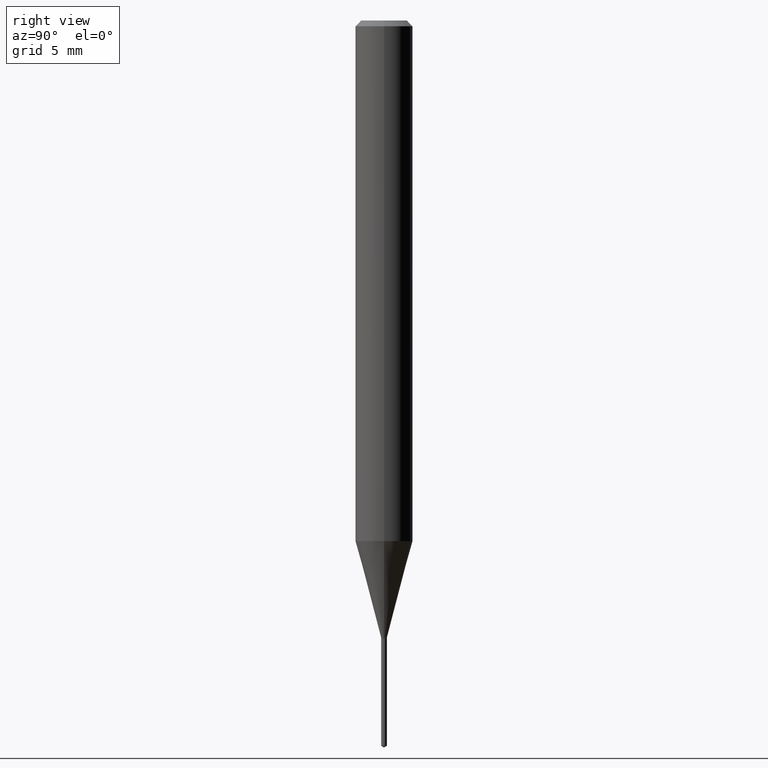
[diagram: clean part render]
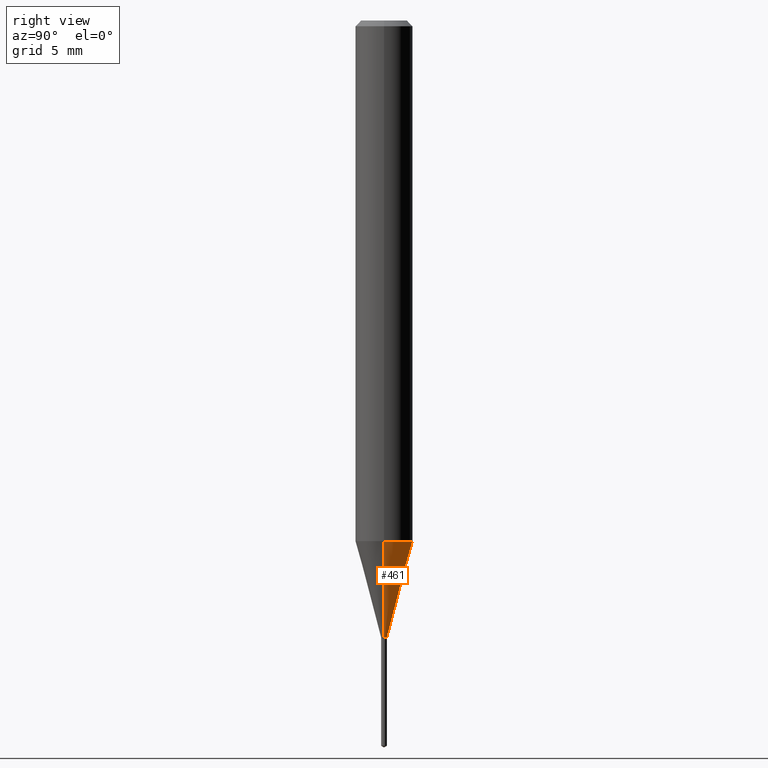
[diagram: same view with one face highlighted and labeled with its STEP entity id]
A machine part, right view. The second image highlights one B-rep face of the part: STEP entity #461.
In plain terms, the highlighted conical surface has half-angle 15 deg.
Its self-contained STEP definition (entity closure, byte-faithful):
#5 = VECTOR ( 'NONE', #327, 39.37007874015748854 ) ;
#13 = VECTOR ( 'NONE', #441, 39.37007874015748854 ) ;
#27 = ORIENTED_EDGE ( 'NONE', *, *, #437, .T. ) ;
#29 = VERTEX_POINT ( 'NONE', #383 ) ;
#31 = CARTESIAN_POINT ( 'NONE',  ( 2.620421311750143284E-29, -3.741267149571589236E-15, -1.071541499577713941 ) ) ;
#33 = ORIENTED_EDGE ( 'NONE', *, *, #77, .T. ) ;
#34 = CARTESIAN_POINT ( 'NONE',  ( -0.005899999999999991189, -4.391910130787065442E-15, -1.269900000000000029 ) ) ;
#67 = CARTESIAN_POINT ( 'NONE',  ( 3.105500836974505052E-29, -4.433832152196910680E-15, -1.269900000000000029 ) ) ;
#73 = DIRECTION ( 'NONE',  ( -2.445468806185136597E-29, 3.491481338843145583E-15, 1.000000000000000000 ) ) ;
#77 = EDGE_CURVE ( 'NONE', #29, #230, #291, .T. ) ;
#120 = ORIENTED_EDGE ( 'NONE', *, *, #388, .F. ) ;
#137 = LINE ( 'NONE', #34, #5 ) ;
#139 = VERTEX_POINT ( 'NONE', #447 ) ;
#142 = DIRECTION ( 'NONE',  ( 1.000000000000000000, -6.982962677686228056E-15, 0.000000000000000000 ) ) ;
#148 = VERTEX_POINT ( 'NONE', #227 ) ;
#176 = ORIENTED_EDGE ( 'NONE', *, *, #454, .F. ) ;
#180 = DIRECTION ( 'NONE',  ( 1.000000000000000000, -6.982962677686265133E-15, 0.000000000000000000 ) ) ;
#181 = DIRECTION ( 'NONE',  ( -2.445468806185136597E-29, 3.491481338843145583E-15, 1.000000000000000000 ) ) ;
#205 = CARTESIAN_POINT ( 'NONE',  ( -0.005899999999999991189, -4.394179593657313002E-15, -1.269900000000000029 ) ) ;
#227 = CARTESIAN_POINT ( 'NONE',  ( -0.05905000000000013710, -3.321691664105248954E-15, -1.071541499577713941 ) ) ;
#230 = VERTEX_POINT ( 'NONE', #205 ) ;
#251 = FACE_OUTER_BOUND ( 'NONE', #252, .T. ) ;
#252 = EDGE_LOOP ( 'NONE', ( #33, #27, #176, #120 ) ) ;
#276 = AXIS2_PLACEMENT_3D ( 'NONE', #31, #286, #180 ) ;
#286 = DIRECTION ( 'NONE',  ( -2.445468806185136597E-29, 3.491481338843145583E-15, 1.000000000000000000 ) ) ;
#291 = CIRCLE ( 'NONE', #418, 0.005899999999999991189 ) ;
#298 = AXIS2_PLACEMENT_3D ( 'NONE', #67, #73, #142 ) ;
#327 = DIRECTION ( 'NONE',  ( -0.2588190451025211836, 5.211531920934547886E-15, 0.9659258262890679791 ) ) ;
#361 = CONICAL_SURFACE ( 'NONE', #298, 0.005899999999999991189, 0.2617993877991499074 ) ;
#380 = CARTESIAN_POINT ( 'NONE',  ( 3.105500836974505052E-29, -4.433832152196910680E-15, -1.269900000000000029 ) ) ;
#383 = CARTESIAN_POINT ( 'NONE',  ( 0.005899999999999991189, -4.475031631995258953E-15, -1.269900000000000029 ) ) ;
#388 = EDGE_CURVE ( 'NONE', #29, #139, #443, .T. ) ;
#398 = DIRECTION ( 'NONE',  ( 1.000000000000000000, -6.982962677686228056E-15, 0.000000000000000000 ) ) ;
#400 = CARTESIAN_POINT ( 'NONE',  ( 0.005899999999999991189, -4.475031631995258953E-15, -1.269900000000000029 ) ) ;
#418 = AXIS2_PLACEMENT_3D ( 'NONE', #380, #181, #398 ) ;
#437 = EDGE_CURVE ( 'NONE', #230, #148, #137, .T. ) ;
#441 = DIRECTION ( 'NONE',  ( 0.2588190451025211836, 1.565188264969622559E-15, 0.9659258262890679791 ) ) ;
#443 = LINE ( 'NONE', #400, #13 ) ;
#447 = CARTESIAN_POINT ( 'NONE',  ( 0.05905000000000013710, -4.153611095688963367E-15, -1.071541499577713941 ) ) ;
#454 = EDGE_CURVE ( 'NONE', #139, #148, #481, .T. ) ;
#461 = ADVANCED_FACE ( 'NONE', ( #251 ), #361, .T. ) ;
#481 = CIRCLE ( 'NONE', #276, 0.05905000000000013016 ) ;